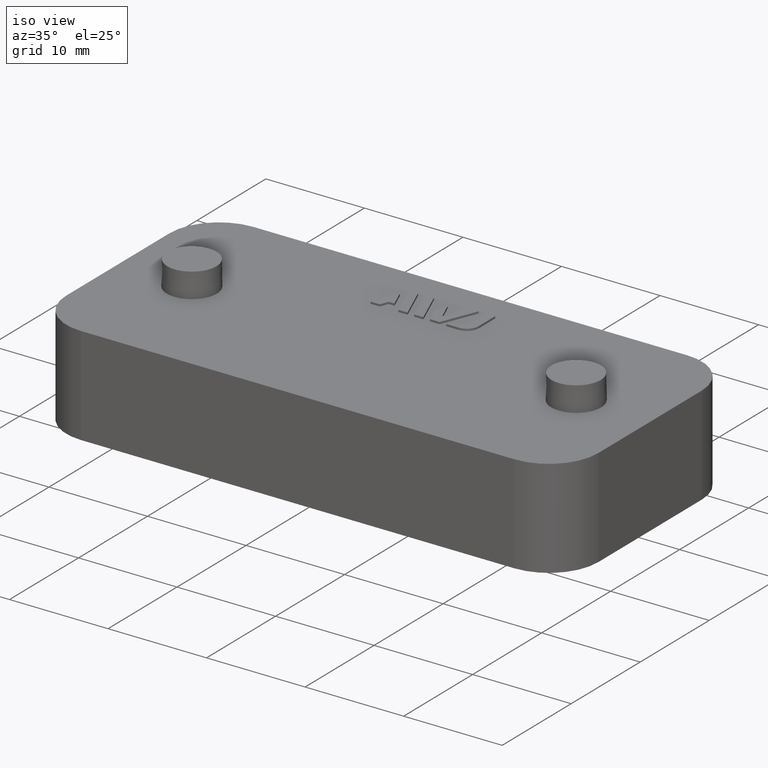
[diagram: clean part render]
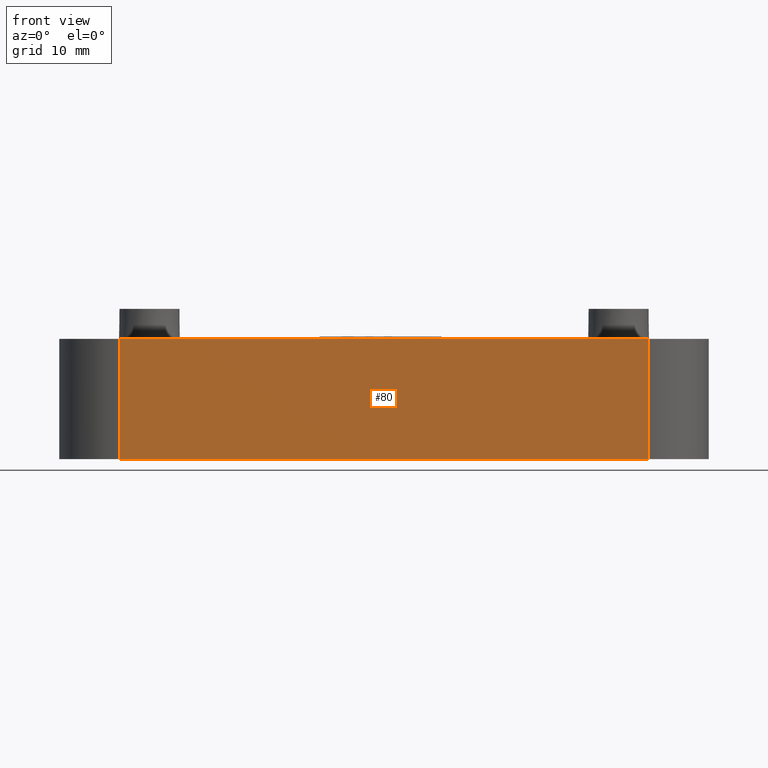
[diagram: tour spotlight — one face highlighted and labeled with its STEP entity id]
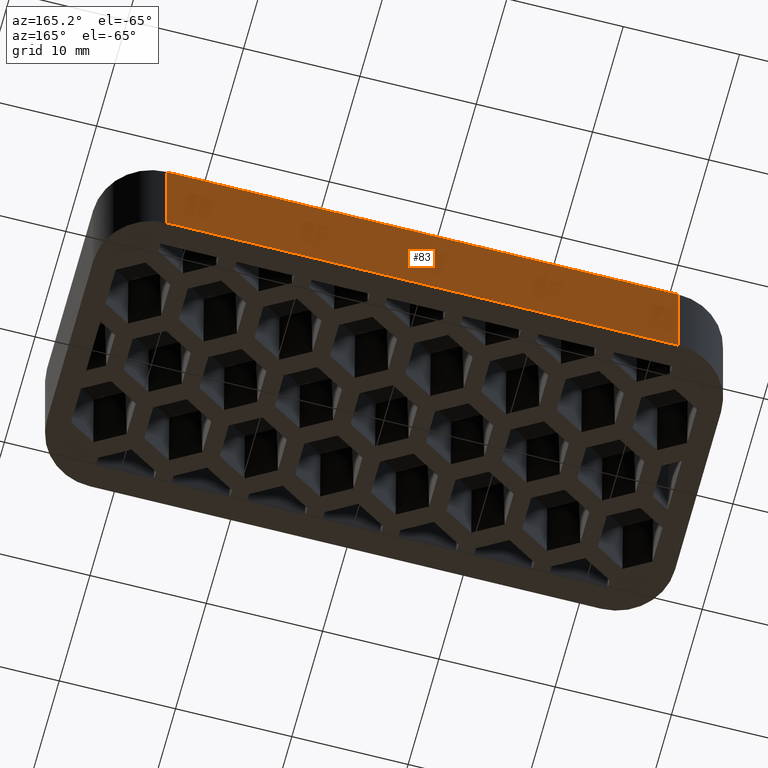
[diagram: tour spotlight — one face highlighted and labeled with its STEP entity id]
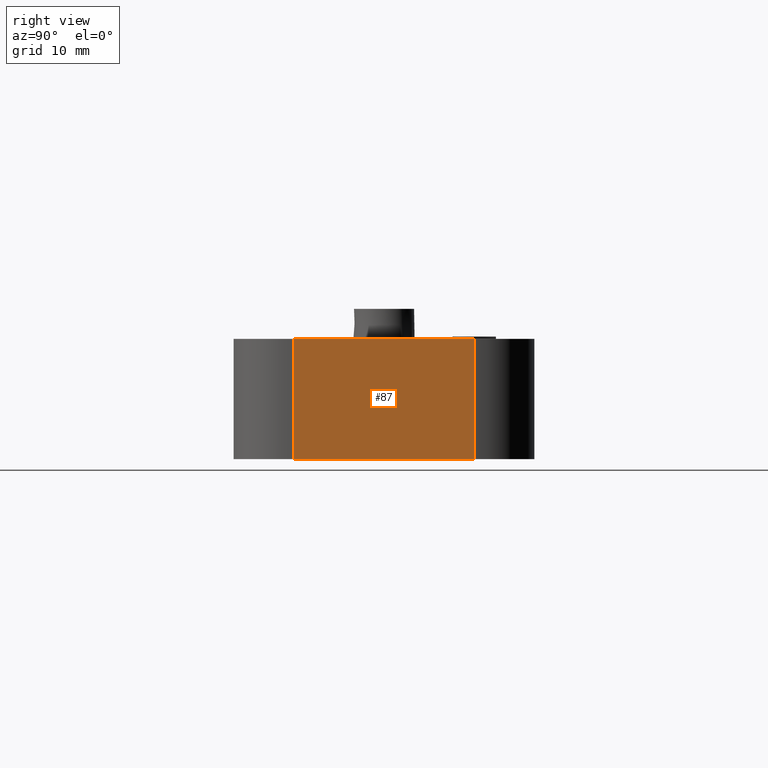
[diagram: tour spotlight — one face highlighted and labeled with its STEP entity id]
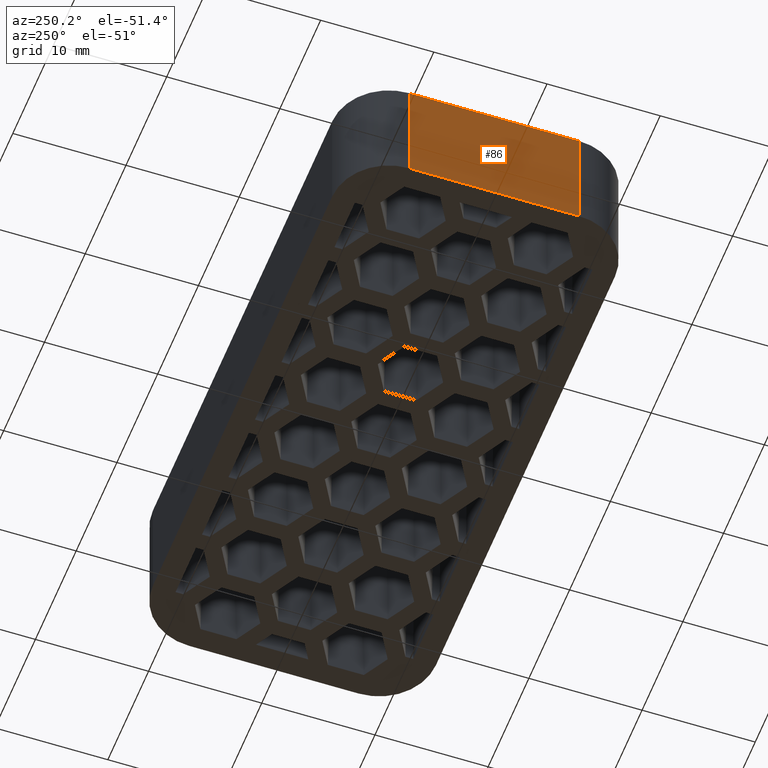
[diagram: tour spotlight — one face highlighted and labeled with its STEP entity id]
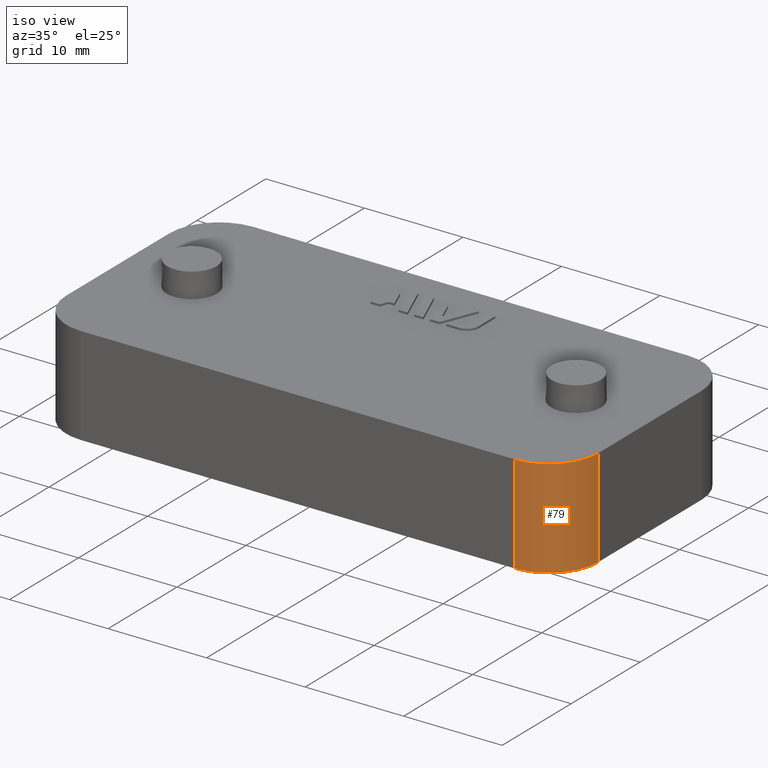
[diagram: tour spotlight — one face highlighted and labeled with its STEP entity id]
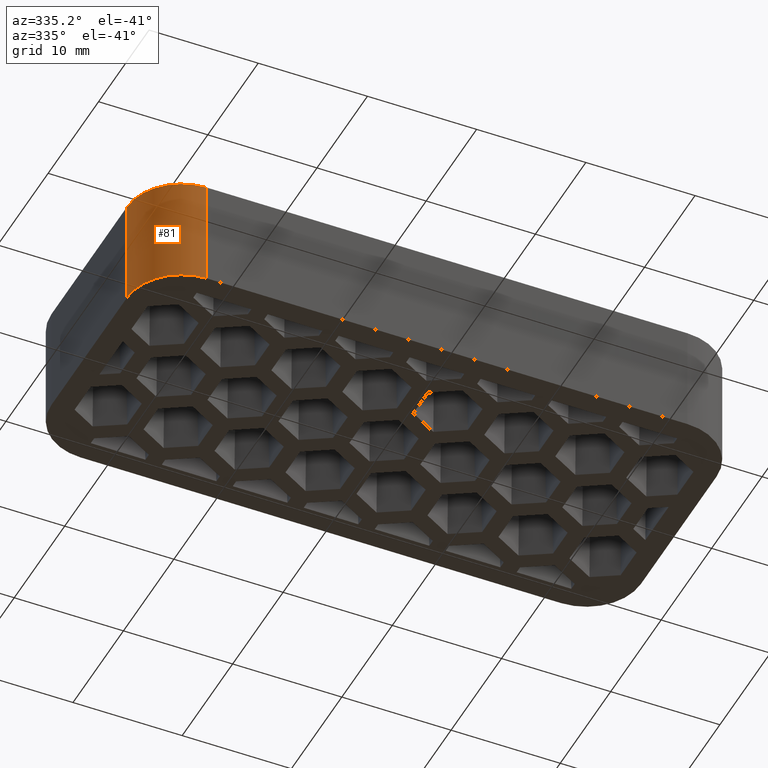
[diagram: tour spotlight — one face highlighted and labeled with its STEP entity id]
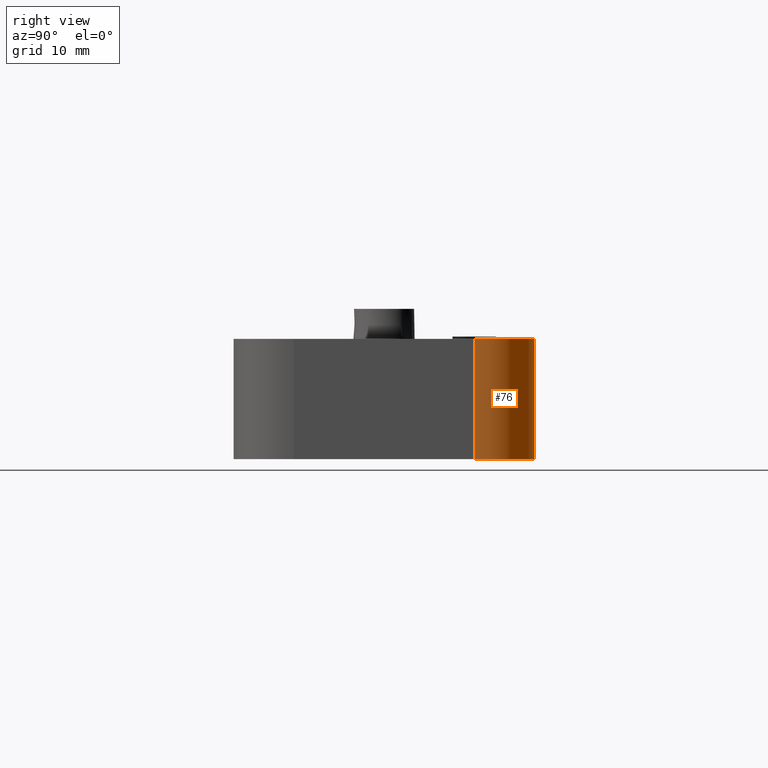
[diagram: tour spotlight — one face highlighted and labeled with its STEP entity id]
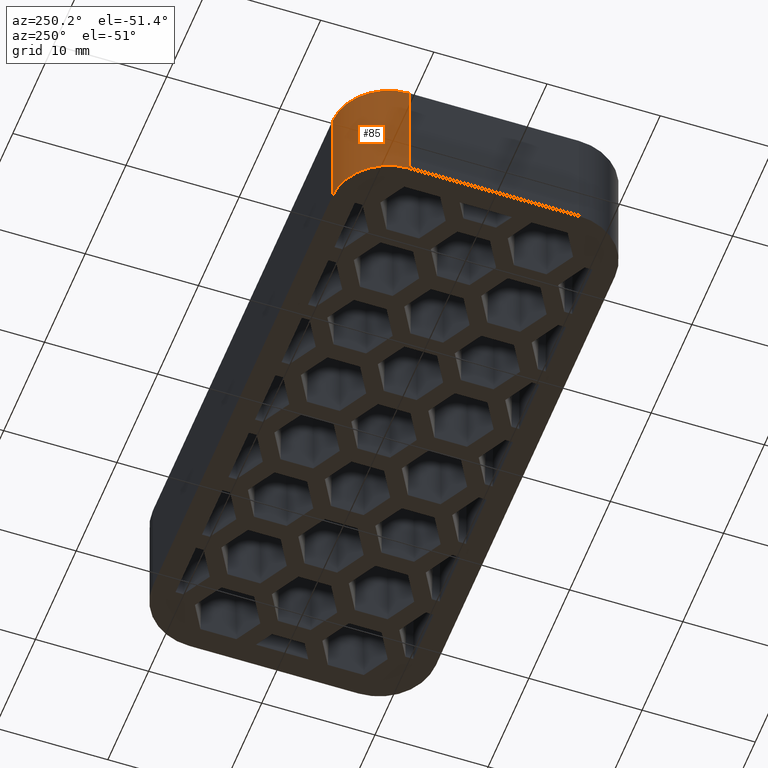
[diagram: tour spotlight — one face highlighted and labeled with its STEP entity id]
A machine part: a face-by-face anatomy tour. The part has 302 B-rep faces; the first image is the clean iso view, then the 8 largest visible faces are spotlighted one at a time (largest first), each with its STEP entity span.

Face 1 — front view, entity #80. In plain terms, the highlighted planar face has unit normal (0, 1, -0).
Definition (entity closure, byte-faithful):
#80 = ADVANCED_FACE( '', ( #395 ), #396, .F. );
#395 = FACE_OUTER_BOUND( '', #1047, .T. );
#396 = PLANE( '', #1048 );
#1047 = EDGE_LOOP( '', ( #1751, #1752, #1753, #1754 ) );
#1048 = AXIS2_PLACEMENT_3D( '', #1755, #1756, #1757 );
#1751 = ORIENTED_EDGE( '', *, *, #4124, .T. );
#1752 = ORIENTED_EDGE( '', *, *, #4157, .F. );
#1753 = ORIENTED_EDGE( '', *, *, #4158, .F. );
#1754 = ORIENTED_EDGE( '', *, *, #4154, .T. );
#1755 = CARTESIAN_POINT( '', ( 22.0000000000000, -12.5000000000000, 7.65378971138986E-016 ) );
#1756 = DIRECTION( '', ( 0.000000000000000, 1.00000000000000, -6.12303176911189E-017 ) );
#1757 = DIRECTION( '', ( 1.00000000000000, 1.59901371767602E-033, 2.61147382207352E-017 ) );
#4124 = EDGE_CURVE( '', #4901, #4899, #4902, .T. );
#4154 = EDGE_CURVE( '', #4957, #4901, #4958, .T. );
#4157 = EDGE_CURVE( '', #4962, #4899, #4963, .T. );
#4158 = EDGE_CURVE( '', #4957, #4962, #4964, .T. );
#4899 = VERTEX_POINT( '', #6180 );
#4901 = VERTEX_POINT( '', #6182 );
#4902 = LINE( '', #6183, #6184 );
#4957 = VERTEX_POINT( '', #6262 );
#4958 = LINE( '', #6263, #6264 );
#4962 = VERTEX_POINT( '', #6269 );
#4963 = LINE( '', #6270, #6271 );
#4964 = LINE( '', #6272, #6273 );
#6180 = CARTESIAN_POINT( '', ( -22.0000000000000, -12.5000000000000, 10.0000000000000 ) );
#6182 = CARTESIAN_POINT( '', ( 22.0000000000000, -12.5000000000000, 10.0000000000000 ) );
#6183 = CARTESIAN_POINT( '', ( 22.0000000000000, -12.5000000000000, 10.0000000000000 ) );
#6184 = VECTOR( '', #8170, 1000.00000000000 );
#6262 = CARTESIAN_POINT( '', ( 22.0000000000000, -12.5000000000000, 1.46431667789534E-014 ) );
#6263 = CARTESIAN_POINT( '', ( 22.0000000000000, -12.5000000000000, 1.46431667789534E-014 ) );
#6264 = VECTOR( '', #8212, 1000.00000000000 );
#6269 = CARTESIAN_POINT( '', ( -22.0000000000000, -12.5000000000000, 7.65378971138986E-016 ) );
#6270 = CARTESIAN_POINT( '', ( -22.0000000000000, -12.5000000000000, 7.65378971138986E-016 ) );
#6271 = VECTOR( '', #8217, 1000.00000000000 );
#6272 = CARTESIAN_POINT( '', ( 22.0000000000000, -12.5000000000000, 7.65378971138986E-016 ) );
#6273 = VECTOR( '', #8218, 1000.00000000000 );
#8170 = DIRECTION( '', ( -1.00000000000000, 1.88680483753071E-049, 3.08148791101958E-033 ) );
#8212 = DIRECTION( '', ( -2.61147382207352E-017, 6.12303176911189E-017, 1.00000000000000 ) );
#8217 = DIRECTION( '', ( -2.61147382207352E-017, 6.12303176911189E-017, 1.00000000000000 ) );
#8218 = DIRECTION( '', ( -1.00000000000000, 1.88680483753071E-049, 3.08148791101958E-033 ) );

Face 2 — auxiliary view, entity #83. In plain terms, the highlighted planar face has unit normal (0, -1, 0).
Definition (entity closure, byte-faithful):
#83 = ADVANCED_FACE( '', ( #440 ), #441, .F. );
#440 = FACE_OUTER_BOUND( '', #1092, .T. );
#441 = PLANE( '', #1093 );
#1092 = EDGE_LOOP( '', ( #1992, #1993, #1994, #1995 ) );
#1093 = AXIS2_PLACEMENT_3D( '', #1996, #1997, #1998 );
#1992 = ORIENTED_EDGE( '', *, *, #4120, .T. );
#1993 = ORIENTED_EDGE( '', *, *, #4148, .F. );
#1994 = ORIENTED_EDGE( '', *, *, #4356, .F. );
#1995 = ORIENTED_EDGE( '', *, *, #4381, .T. );
#1996 = CARTESIAN_POINT( '', ( -22.0000000000000, 12.5000000000000, -7.65378971138986E-016 ) );
#1997 = DIRECTION( '', ( 1.23259516440783E-032, -1.00000000000000, 6.12303176911189E-017 ) );
#1998 = DIRECTION( '', ( -1.00000000000000, -1.39249653617543E-032, -2.61147382207352E-017 ) );
#4120 = EDGE_CURVE( '', #4893, #4890, #4894, .T. );
#4148 = EDGE_CURVE( '', #4946, #4890, #4948, .T. );
#4356 = EDGE_CURVE( '', #5355, #4946, #5357, .T. );
#4381 = EDGE_CURVE( '', #5355, #4893, #5406, .T. );
#4890 = VERTEX_POINT( '', #6169 );
#4893 = VERTEX_POINT( '', #6172 );
#4894 = LINE( '', #6173, #6174 );
#4946 = VERTEX_POINT( '', #6245 );
#4948 = LINE( '', #6247, #6248 );
#5355 = VERTEX_POINT( '', #6859 );
#5357 = LINE( '', #6861, #6862 );
#5406 = LINE( '', #6935, #6936 );
#6169 = CARTESIAN_POINT( '', ( 22.0000000000000, 12.5000000000000, 10.0000000000000 ) );
#6172 = CARTESIAN_POINT( '', ( -22.0000000000000, 12.5000000000000, 10.0000000000000 ) );
#6173 = CARTESIAN_POINT( '', ( -22.0000000000000, 12.5000000000000, 10.0000000000000 ) );
#6174 = VECTOR( '', #8162, 1000.00000000000 );
#6245 = CARTESIAN_POINT( '', ( 22.0000000000000, 12.5000000000000, -7.65378971138986E-016 ) );
#6247 = CARTESIAN_POINT( '', ( 22.0000000000000, 12.5000000000000, -7.65378971138986E-016 ) );
#6248 = VECTOR( '', #8206, 1000.00000000000 );
#6859 = CARTESIAN_POINT( '', ( -22.0000000000000, 12.5000000000000, -7.65378971138986E-016 ) );
#6861 = CARTESIAN_POINT( '', ( -22.0000000000000, 12.5000000000000, -7.65378971138986E-016 ) );
#6862 = VECTOR( '', #8420, 1000.00000000000 );
#6935 = CARTESIAN_POINT( '', ( -22.0000000000000, 12.5000000000000, -7.65378971138986E-016 ) );
#6936 = VECTOR( '', #8445, 1000.00000000000 );
#8162 = DIRECTION( '', ( 1.00000000000000, 1.23259516440783E-032, -3.08148791101958E-033 ) );
#8206 = DIRECTION( '', ( -2.61147382207352E-017, 6.12303176911189E-017, 1.00000000000000 ) );
#8420 = DIRECTION( '', ( 1.00000000000000, 1.23259516440783E-032, -3.08148791101958E-033 ) );
#8445 = DIRECTION( '', ( -2.61147382207352E-017, 6.12303176911189E-017, 1.00000000000000 ) );

Face 3 — right view, entity #87. In plain terms, the highlighted planar face has unit normal (-1, 0, -0).
Definition (entity closure, byte-faithful):
#87 = ADVANCED_FACE( '', ( #449 ), #450, .F. );
#449 = FACE_OUTER_BOUND( '', #1101, .T. );
#450 = PLANE( '', #1102 );
#1101 = EDGE_LOOP( '', ( #2018, #2019, #2020, #2021 ) );
#1102 = AXIS2_PLACEMENT_3D( '', #2022, #2023, #2024 );
#2018 = ORIENTED_EDGE( '', *, *, #4126, .T. );
#2019 = ORIENTED_EDGE( '', *, *, #4156, .F. );
#2020 = ORIENTED_EDGE( '', *, *, #4353, .F. );
#2021 = ORIENTED_EDGE( '', *, *, #4146, .T. );
#2022 = CARTESIAN_POINT( '', ( 27.0000000000000, 7.49999999999999, -4.59227382683391E-016 ) );
#2023 = DIRECTION( '', ( -1.00000000000000, 6.42490176287706E-017, -2.61147382207352E-017 ) );
#2024 = DIRECTION( '', ( 6.42490176287706E-017, 1.00000000000000, -6.12303176911189E-017 ) );
#4126 = EDGE_CURVE( '', #4891, #4903, #4905, .T. );
#4146 = EDGE_CURVE( '', #4944, #4891, #4945, .T. );
#4156 = EDGE_CURVE( '', #4959, #4903, #4961, .T. );
#4353 = EDGE_CURVE( '', #4944, #4959, #5352, .T. );
#4891 = VERTEX_POINT( '', #6170 );
#4903 = VERTEX_POINT( '', #6185 );
#4905 = LINE( '', #6187, #6188 );
#4944 = VERTEX_POINT( '', #6242 );
#4945 = LINE( '', #6243, #6244 );
#4959 = VERTEX_POINT( '', #6265 );
#4961 = LINE( '', #6267, #6268 );
#5352 = LINE( '', #6854, #6855 );
#6170 = CARTESIAN_POINT( '', ( 27.0000000000000, 7.49999999999999, 10.0000000000000 ) );
#6185 = CARTESIAN_POINT( '', ( 27.0000000000000, -7.50000000000001, 10.0000000000000 ) );
#6187 = CARTESIAN_POINT( '', ( 27.0000000000000, 7.49999999999999, 10.0000000000000 ) );
#6188 = VECTOR( '', #8174, 1000.00000000000 );
#6242 = CARTESIAN_POINT( '', ( 27.0000000000000, 7.49999999999999, -4.59227382683391E-016 ) );
#6243 = CARTESIAN_POINT( '', ( 27.0000000000000, 7.49999999999999, -4.59227382683391E-016 ) );
#6244 = VECTOR( '', #8202, 1000.00000000000 );
#6265 = CARTESIAN_POINT( '', ( 27.0000000000000, -7.50000000000001, 4.59227382683392E-016 ) );
#6267 = CARTESIAN_POINT( '', ( 27.0000000000000, -7.50000000000001, 4.59227382683392E-016 ) );
#6268 = VECTOR( '', #8216, 1000.00000000000 );
#6854 = CARTESIAN_POINT( '', ( 27.0000000000000, 7.49999999999999, -4.59227382683391E-016 ) );
#6855 = VECTOR( '', #8415, 1000.00000000000 );
#8174 = DIRECTION( '', ( -6.42490176287706E-017, -1.00000000000000, 6.12303176911189E-017 ) );
#8202 = DIRECTION( '', ( -2.61147382207352E-017, 6.12303176911189E-017, 1.00000000000000 ) );
#8216 = DIRECTION( '', ( -2.61147382207352E-017, 6.12303176911189E-017, 1.00000000000000 ) );
#8415 = DIRECTION( '', ( -6.42490176287706E-017, -1.00000000000000, 6.12303176911189E-017 ) );

Face 4 — auxiliary view, entity #86. In plain terms, the highlighted planar face has unit normal (1, -0, 0).
Definition (entity closure, byte-faithful):
#86 = ADVANCED_FACE( '', ( #447 ), #448, .F. );
#447 = FACE_OUTER_BOUND( '', #1099, .T. );
#448 = PLANE( '', #1100 );
#1099 = EDGE_LOOP( '', ( #2011, #2012, #2013, #2014 ) );
#1100 = AXIS2_PLACEMENT_3D( '', #2015, #2016, #2017 );
#2011 = ORIENTED_EDGE( '', *, *, #4122, .T. );
#2012 = ORIENTED_EDGE( '', *, *, #4383, .F. );
#2013 = ORIENTED_EDGE( '', *, *, #4354, .F. );
#2014 = ORIENTED_EDGE( '', *, *, #4159, .T. );
#2015 = CARTESIAN_POINT( '', ( -27.0000000000000, -7.50000000000002, 4.59227382683393E-016 ) );
#2016 = DIRECTION( '', ( 1.00000000000000, -6.42490176287706E-017, 2.61147382207352E-017 ) );
#2017 = DIRECTION( '', ( -6.42490176287706E-017, -1.00000000000000, 6.12303176911189E-017 ) );
#4122 = EDGE_CURVE( '', #4897, #4895, #4898, .T. );
#4159 = EDGE_CURVE( '', #4965, #4897, #4966, .T. );
#4354 = EDGE_CURVE( '', #4965, #5353, #5354, .T. );
#4383 = EDGE_CURVE( '', #5353, #4895, #5409, .T. );
#4895 = VERTEX_POINT( '', #6175 );
#4897 = VERTEX_POINT( '', #6177 );
#4898 = LINE( '', #6178, #6179 );
#4965 = VERTEX_POINT( '', #6274 );
#4966 = LINE( '', #6275, #6276 );
#5353 = VERTEX_POINT( '', #6856 );
#5354 = LINE( '', #6857, #6858 );
#5409 = LINE( '', #6939, #6940 );
#6175 = CARTESIAN_POINT( '', ( -27.0000000000000, 7.50000000000000, 10.0000000000000 ) );
#6177 = CARTESIAN_POINT( '', ( -27.0000000000000, -7.50000000000000, 10.0000000000000 ) );
#6178 = CARTESIAN_POINT( '', ( -27.0000000000000, -7.50000000000002, 10.0000000000000 ) );
#6179 = VECTOR( '', #8166, 1000.00000000000 );
#6274 = CARTESIAN_POINT( '', ( -27.0000000000000, -7.50000000000000, 4.59227382683391E-016 ) );
#6275 = CARTESIAN_POINT( '', ( -27.0000000000000, -7.50000000000000, 4.59227382683391E-016 ) );
#6276 = VECTOR( '', #8219, 1000.00000000000 );
#6856 = CARTESIAN_POINT( '', ( -27.0000000000000, 7.49999999999999, -4.59227382683391E-016 ) );
#6857 = CARTESIAN_POINT( '', ( -27.0000000000000, -7.50000000000002, 4.59227382683393E-016 ) );
#6858 = VECTOR( '', #8416, 1000.00000000000 );
#6939 = CARTESIAN_POINT( '', ( -27.0000000000000, 7.49999999999999, -4.59227382683391E-016 ) );
#6940 = VECTOR( '', #8449, 1000.00000000000 );
#8166 = DIRECTION( '', ( 6.42490176287706E-017, 1.00000000000000, -6.12303176911189E-017 ) );
#8219 = DIRECTION( '', ( -2.61147382207352E-017, 6.12303176911189E-017, 1.00000000000000 ) );
#8416 = DIRECTION( '', ( 6.42490176287706E-017, 1.00000000000000, -6.12303176911189E-017 ) );
#8449 = DIRECTION( '', ( -2.61147382207352E-017, 6.12303176911189E-017, 1.00000000000000 ) );

Face 5 — iso view, entity #79. In plain terms, the highlighted cylindrical surface (partial cylindrical patch) has radius 5 mm, axis along (0, -0, -1).
Definition (entity closure, byte-faithful):
#79 = ADVANCED_FACE( '', ( #393 ), #394, .T. );
#393 = FACE_OUTER_BOUND( '', #1045, .T. );
#394 = CYLINDRICAL_SURFACE( '', #1046, 4.99999999999999 );
#1045 = EDGE_LOOP( '', ( #1744, #1745, #1746, #1747 ) );
#1046 = AXIS2_PLACEMENT_3D( '', #1748, #1749, #1750 );
#1744 = ORIENTED_EDGE( '', *, *, #4125, .T. );
#1745 = ORIENTED_EDGE( '', *, *, #4154, .F. );
#1746 = ORIENTED_EDGE( '', *, *, #4155, .F. );
#1747 = ORIENTED_EDGE( '', *, *, #4156, .T. );
#1748 = CARTESIAN_POINT( '', ( 22.0000000000000, -7.50000000000002, 1.43370151904978E-014 ) );
#1749 = DIRECTION( '', ( 2.61147382207352E-017, -6.12303176911189E-017, -1.00000000000000 ) );
#1750 = DIRECTION( '', ( -1.00000000000000, 6.42490176287707E-017, -2.61147382207352E-017 ) );
#4125 = EDGE_CURVE( '', #4903, #4901, #4904, .T. );
#4154 = EDGE_CURVE( '', #4957, #4901, #4958, .T. );
#4155 = EDGE_CURVE( '', #4959, #4957, #4960, .T. );
#4156 = EDGE_CURVE( '', #4959, #4903, #4961, .T. );
#4901 = VERTEX_POINT( '', #6182 );
#4903 = VERTEX_POINT( '', #6185 );
#4904 = CIRCLE( '', #6186, 4.99999999999999 );
#4957 = VERTEX_POINT( '', #6262 );
#4958 = LINE( '', #6263, #6264 );
#4959 = VERTEX_POINT( '', #6265 );
#4960 = CIRCLE( '', #6266, 4.99999999999999 );
#4961 = LINE( '', #6267, #6268 );
#6182 = CARTESIAN_POINT( '', ( 22.0000000000000, -12.5000000000000, 10.0000000000000 ) );
#6185 = CARTESIAN_POINT( '', ( 27.0000000000000, -7.50000000000001, 10.0000000000000 ) );
#6186 = AXIS2_PLACEMENT_3D( '', #8171, #8172, #8173 );
#6262 = CARTESIAN_POINT( '', ( 22.0000000000000, -12.5000000000000, 1.46431667789534E-014 ) );
#6263 = CARTESIAN_POINT( '', ( 22.0000000000000, -12.5000000000000, 1.46431667789534E-014 ) );
#6264 = VECTOR( '', #8212, 1000.00000000000 );
#6265 = CARTESIAN_POINT( '', ( 27.0000000000000, -7.50000000000001, 4.59227382683392E-016 ) );
#6266 = AXIS2_PLACEMENT_3D( '', #8213, #8214, #8215 );
#6267 = CARTESIAN_POINT( '', ( 27.0000000000000, -7.50000000000001, 4.59227382683392E-016 ) );
#6268 = VECTOR( '', #8216, 1000.00000000000 );
#8171 = CARTESIAN_POINT( '', ( 22.0000000000000, -7.50000000000001, 10.0000000000000 ) );
#8172 = DIRECTION( '', ( 2.61147382207352E-017, -6.12303176911189E-017, -1.00000000000000 ) );
#8173 = DIRECTION( '', ( 6.42490176287707E-017, 1.00000000000000, -6.12303176911189E-017 ) );
#8212 = DIRECTION( '', ( -2.61147382207352E-017, 6.12303176911189E-017, 1.00000000000000 ) );
#8213 = CARTESIAN_POINT( '', ( 22.0000000000000, -7.50000000000002, 1.43370151904978E-014 ) );
#8214 = DIRECTION( '', ( 2.61147382207352E-017, -6.12303176911189E-017, -1.00000000000000 ) );
#8215 = DIRECTION( '', ( 6.42490176287707E-017, 1.00000000000000, -6.12303176911189E-017 ) );
#8216 = DIRECTION( '', ( -2.61147382207352E-017, 6.12303176911189E-017, 1.00000000000000 ) );

Face 6 — auxiliary view, entity #81. In plain terms, the highlighted cylindrical surface (partial cylindrical patch) has radius 5 mm, axis along (0, -0, -1).
Definition (entity closure, byte-faithful):
#81 = ADVANCED_FACE( '', ( #397 ), #398, .T. );
#397 = FACE_OUTER_BOUND( '', #1049, .T. );
#398 = CYLINDRICAL_SURFACE( '', #1050, 5.00000000000000 );
#1049 = EDGE_LOOP( '', ( #1758, #1759, #1760, #1761 ) );
#1050 = AXIS2_PLACEMENT_3D( '', #1762, #1763, #1764 );
#1758 = ORIENTED_EDGE( '', *, *, #4123, .T. );
#1759 = ORIENTED_EDGE( '', *, *, #4159, .F. );
#1760 = ORIENTED_EDGE( '', *, *, #4160, .F. );
#1761 = ORIENTED_EDGE( '', *, *, #4157, .T. );
#1762 = CARTESIAN_POINT( '', ( -22.0000000000000, -7.49999999999999, 4.59227382683391E-016 ) );
#1763 = DIRECTION( '', ( 2.61147382207352E-017, -6.12303176911189E-017, -1.00000000000000 ) );
#1764 = DIRECTION( '', ( -1.00000000000000, 6.42490176287706E-017, -2.61147382207352E-017 ) );
#4123 = EDGE_CURVE( '', #4899, #4897, #4900, .T. );
#4157 = EDGE_CURVE( '', #4962, #4899, #4963, .T. );
#4159 = EDGE_CURVE( '', #4965, #4897, #4966, .T. );
#4160 = EDGE_CURVE( '', #4962, #4965, #4967, .T. );
#4897 = VERTEX_POINT( '', #6177 );
#4899 = VERTEX_POINT( '', #6180 );
#4900 = CIRCLE( '', #6181, 5.00000000000000 );
#4962 = VERTEX_POINT( '', #6269 );
#4963 = LINE( '', #6270, #6271 );
#4965 = VERTEX_POINT( '', #6274 );
#4966 = LINE( '', #6275, #6276 );
#4967 = CIRCLE( '', #6277, 5.00000000000000 );
#6177 = CARTESIAN_POINT( '', ( -27.0000000000000, -7.50000000000000, 10.0000000000000 ) );
#6180 = CARTESIAN_POINT( '', ( -22.0000000000000, -12.5000000000000, 10.0000000000000 ) );
#6181 = AXIS2_PLACEMENT_3D( '', #8167, #8168, #8169 );
#6269 = CARTESIAN_POINT( '', ( -22.0000000000000, -12.5000000000000, 7.65378971138986E-016 ) );
#6270 = CARTESIAN_POINT( '', ( -22.0000000000000, -12.5000000000000, 7.65378971138986E-016 ) );
#6271 = VECTOR( '', #8217, 1000.00000000000 );
#6274 = CARTESIAN_POINT( '', ( -27.0000000000000, -7.50000000000000, 4.59227382683391E-016 ) );
#6275 = CARTESIAN_POINT( '', ( -27.0000000000000, -7.50000000000000, 4.59227382683391E-016 ) );
#6276 = VECTOR( '', #8219, 1000.00000000000 );
#6277 = AXIS2_PLACEMENT_3D( '', #8220, #8221, #8222 );
#8167 = CARTESIAN_POINT( '', ( -22.0000000000000, -7.49999999999999, 10.0000000000000 ) );
#8168 = DIRECTION( '', ( 2.61147382207352E-017, -6.12303176911189E-017, -1.00000000000000 ) );
#8169 = DIRECTION( '', ( 6.42490176287706E-017, 1.00000000000000, -6.12303176911189E-017 ) );
#8217 = DIRECTION( '', ( -2.61147382207352E-017, 6.12303176911189E-017, 1.00000000000000 ) );
#8219 = DIRECTION( '', ( -2.61147382207352E-017, 6.12303176911189E-017, 1.00000000000000 ) );
#8220 = CARTESIAN_POINT( '', ( -22.0000000000000, -7.49999999999999, 4.59227382683391E-016 ) );
#8221 = DIRECTION( '', ( 2.61147382207352E-017, -6.12303176911189E-017, -1.00000000000000 ) );
#8222 = DIRECTION( '', ( 6.42490176287706E-017, 1.00000000000000, -6.12303176911189E-017 ) );

Face 7 — right view, entity #76. In plain terms, the highlighted cylindrical surface (partial cylindrical patch) has radius 5 mm, axis along (0, -0, -1).
Definition (entity closure, byte-faithful):
#76 = ADVANCED_FACE( '', ( #387 ), #388, .T. );
#387 = FACE_OUTER_BOUND( '', #1039, .T. );
#388 = CYLINDRICAL_SURFACE( '', #1040, 4.99999999999999 );
#1039 = EDGE_LOOP( '', ( #1723, #1724, #1725, #1726 ) );
#1040 = AXIS2_PLACEMENT_3D( '', #1727, #1728, #1729 );
#1723 = ORIENTED_EDGE( '', *, *, #4119, .T. );
#1724 = ORIENTED_EDGE( '', *, *, #4146, .F. );
#1725 = ORIENTED_EDGE( '', *, *, #4147, .F. );
#1726 = ORIENTED_EDGE( '', *, *, #4148, .T. );
#1727 = CARTESIAN_POINT( '', ( 22.0000000000000, 7.50000000000001, 1.34185604251311E-014 ) );
#1728 = DIRECTION( '', ( 2.61147382207352E-017, -6.12303176911189E-017, -1.00000000000000 ) );
#1729 = DIRECTION( '', ( -1.00000000000000, 6.42490176287707E-017, -2.61147382207352E-017 ) );
#4119 = EDGE_CURVE( '', #4890, #4891, #4892, .T. );
#4146 = EDGE_CURVE( '', #4944, #4891, #4945, .T. );
#4147 = EDGE_CURVE( '', #4946, #4944, #4947, .T. );
#4148 = EDGE_CURVE( '', #4946, #4890, #4948, .T. );
#4890 = VERTEX_POINT( '', #6169 );
#4891 = VERTEX_POINT( '', #6170 );
#4892 = CIRCLE( '', #6171, 4.99999999999999 );
#4944 = VERTEX_POINT( '', #6242 );
#4945 = LINE( '', #6243, #6244 );
#4946 = VERTEX_POINT( '', #6245 );
#4947 = CIRCLE( '', #6246, 4.99999999999999 );
#4948 = LINE( '', #6247, #6248 );
#6169 = CARTESIAN_POINT( '', ( 22.0000000000000, 12.5000000000000, 10.0000000000000 ) );
#6170 = CARTESIAN_POINT( '', ( 27.0000000000000, 7.49999999999999, 10.0000000000000 ) );
#6171 = AXIS2_PLACEMENT_3D( '', #8159, #8160, #8161 );
#6242 = CARTESIAN_POINT( '', ( 27.0000000000000, 7.49999999999999, -4.59227382683391E-016 ) );
#6243 = CARTESIAN_POINT( '', ( 27.0000000000000, 7.49999999999999, -4.59227382683391E-016 ) );
#6244 = VECTOR( '', #8202, 1000.00000000000 );
#6245 = CARTESIAN_POINT( '', ( 22.0000000000000, 12.5000000000000, -7.65378971138986E-016 ) );
#6246 = AXIS2_PLACEMENT_3D( '', #8203, #8204, #8205 );
#6247 = CARTESIAN_POINT( '', ( 22.0000000000000, 12.5000000000000, -7.65378971138986E-016 ) );
#6248 = VECTOR( '', #8206, 1000.00000000000 );
#8159 = CARTESIAN_POINT( '', ( 22.0000000000000, 7.50000000000001, 10.0000000000000 ) );
#8160 = DIRECTION( '', ( 2.61147382207352E-017, -6.12303176911189E-017, -1.00000000000000 ) );
#8161 = DIRECTION( '', ( 6.42490176287707E-017, 1.00000000000000, -6.12303176911189E-017 ) );
#8202 = DIRECTION( '', ( -2.61147382207352E-017, 6.12303176911189E-017, 1.00000000000000 ) );
#8203 = CARTESIAN_POINT( '', ( 22.0000000000000, 7.50000000000001, 1.34185604251311E-014 ) );
#8204 = DIRECTION( '', ( 2.61147382207352E-017, -6.12303176911189E-017, -1.00000000000000 ) );
#8205 = DIRECTION( '', ( 6.42490176287707E-017, 1.00000000000000, -6.12303176911189E-017 ) );
#8206 = DIRECTION( '', ( -2.61147382207352E-017, 6.12303176911189E-017, 1.00000000000000 ) );

Face 8 — auxiliary view, entity #85. In plain terms, the highlighted cylindrical surface (partial cylindrical patch) has radius 5 mm, axis along (0, -0, -1).
Definition (entity closure, byte-faithful):
#85 = ADVANCED_FACE( '', ( #445 ), #446, .T. );
#445 = FACE_OUTER_BOUND( '', #1097, .T. );
#446 = CYLINDRICAL_SURFACE( '', #1098, 5.00000000000000 );
#1097 = EDGE_LOOP( '', ( #2004, #2005, #2006, #2007 ) );
#1098 = AXIS2_PLACEMENT_3D( '', #2008, #2009, #2010 );
#2004 = ORIENTED_EDGE( '', *, *, #4121, .T. );
#2005 = ORIENTED_EDGE( '', *, *, #4381, .F. );
#2006 = ORIENTED_EDGE( '', *, *, #4355, .F. );
#2007 = ORIENTED_EDGE( '', *, *, #4383, .T. );
#2008 = CARTESIAN_POINT( '', ( -22.0000000000000, 7.50000000000000, -4.59227382683391E-016 ) );
#2009 = DIRECTION( '', ( 2.61147382207352E-017, -6.12303176911189E-017, -1.00000000000000 ) );
#2010 = DIRECTION( '', ( -1.00000000000000, 6.42490176287706E-017, -2.61147382207352E-017 ) );
#4121 = EDGE_CURVE( '', #4895, #4893, #4896, .T. );
#4355 = EDGE_CURVE( '', #5353, #5355, #5356, .T. );
#4381 = EDGE_CURVE( '', #5355, #4893, #5406, .T. );
#4383 = EDGE_CURVE( '', #5353, #4895, #5409, .T. );
#4893 = VERTEX_POINT( '', #6172 );
#4895 = VERTEX_POINT( '', #6175 );
#4896 = CIRCLE( '', #6176, 5.00000000000000 );
#5353 = VERTEX_POINT( '', #6856 );
#5355 = VERTEX_POINT( '', #6859 );
#5356 = CIRCLE( '', #6860, 5.00000000000000 );
#5406 = LINE( '', #6935, #6936 );
#5409 = LINE( '', #6939, #6940 );
#6172 = CARTESIAN_POINT( '', ( -22.0000000000000, 12.5000000000000, 10.0000000000000 ) );
#6175 = CARTESIAN_POINT( '', ( -27.0000000000000, 7.50000000000000, 10.0000000000000 ) );
#6176 = AXIS2_PLACEMENT_3D( '', #8163, #8164, #8165 );
#6856 = CARTESIAN_POINT( '', ( -27.0000000000000, 7.49999999999999, -4.59227382683391E-016 ) );
#6859 = CARTESIAN_POINT( '', ( -22.0000000000000, 12.5000000000000, -7.65378971138986E-016 ) );
#6860 = AXIS2_PLACEMENT_3D( '', #8417, #8418, #8419 );
#6935 = CARTESIAN_POINT( '', ( -22.0000000000000, 12.5000000000000, -7.65378971138986E-016 ) );
#6936 = VECTOR( '', #8445, 1000.00000000000 );
#6939 = CARTESIAN_POINT( '', ( -27.0000000000000, 7.49999999999999, -4.59227382683391E-016 ) );
#6940 = VECTOR( '', #8449, 1000.00000000000 );
#8163 = CARTESIAN_POINT( '', ( -22.0000000000000, 7.50000000000000, 10.0000000000000 ) );
#8164 = DIRECTION( '', ( 2.61147382207352E-017, -6.12303176911189E-017, -1.00000000000000 ) );
#8165 = DIRECTION( '', ( 6.42490176287706E-017, 1.00000000000000, -6.12303176911189E-017 ) );
#8417 = CARTESIAN_POINT( '', ( -22.0000000000000, 7.50000000000000, -4.59227382683391E-016 ) );
#8418 = DIRECTION( '', ( 2.61147382207352E-017, -6.12303176911189E-017, -1.00000000000000 ) );
#8419 = DIRECTION( '', ( 6.42490176287706E-017, 1.00000000000000, -6.12303176911189E-017 ) );
#8445 = DIRECTION( '', ( -2.61147382207352E-017, 6.12303176911189E-017, 1.00000000000000 ) );
#8449 = DIRECTION( '', ( -2.61147382207352E-017, 6.12303176911189E-017, 1.00000000000000 ) );